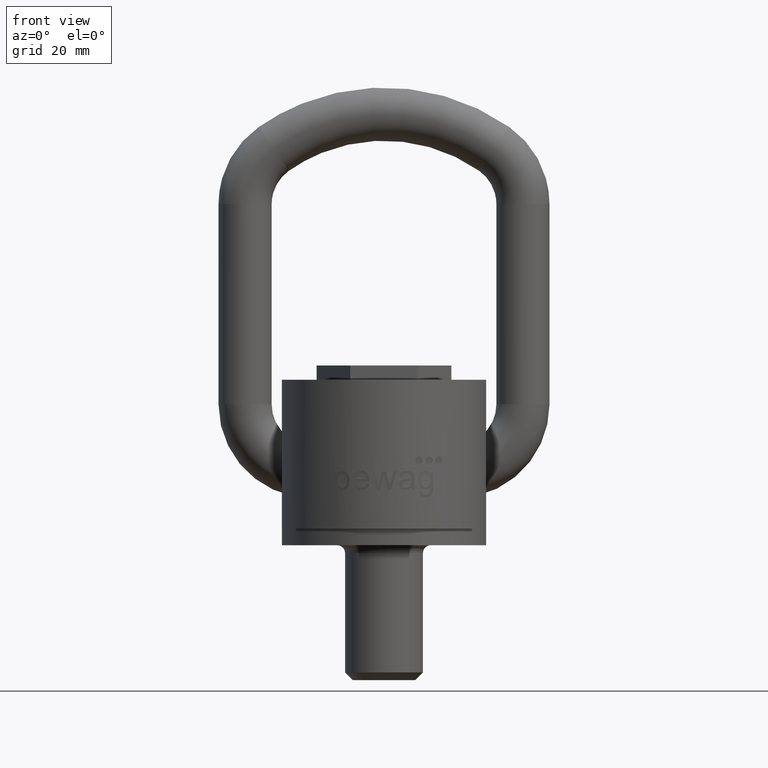
[diagram: clean part render]
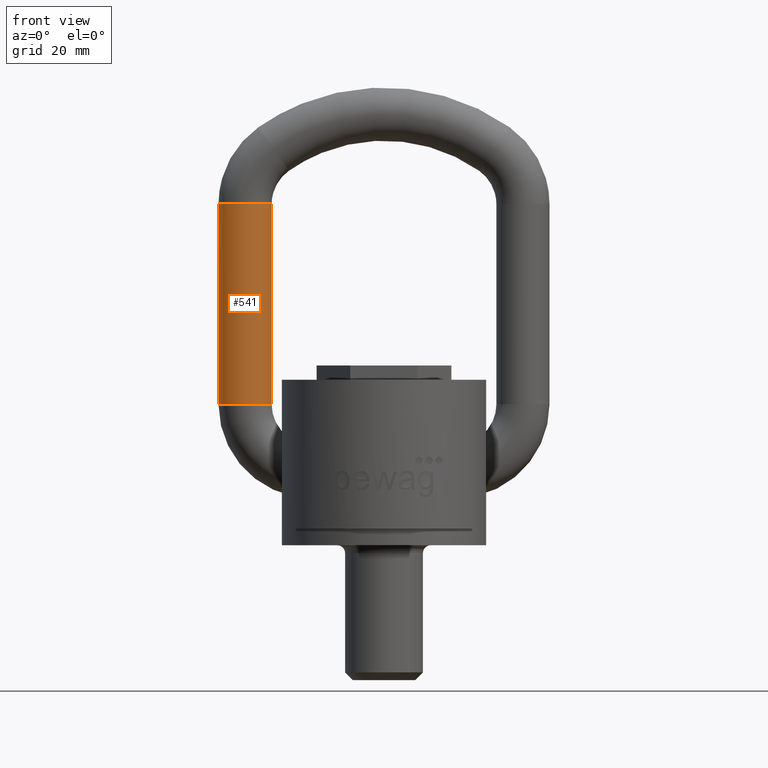
[diagram: same view with one face highlighted and labeled with its STEP entity id]
A machine part, front view. The second image highlights one B-rep face of the part: STEP entity #541.
In plain terms, the highlighted cylindrical surface (bore or boss wall) has radius 6.5 mm, axis along (0, 0, -1).
Its self-contained STEP definition (entity closure, byte-faithful):
#541=ADVANCED_FACE('',(#622,#623),#562,.T.);
#562=CYLINDRICAL_SURFACE('',#2601,6.5);
#622=FACE_BOUND('',#785,.T.);
#623=FACE_BOUND('',#786,.T.);
#785=EDGE_LOOP('',(#1757));
#786=EDGE_LOOP('',(#1758));
#1136=CIRCLE('',#2598,6.5);
#1137=CIRCLE('',#2600,6.5);
#1757=ORIENTED_EDGE('',*,*,#2290,.T.);
#1758=ORIENTED_EDGE('',*,*,#2289,.F.);
#1976=VERTEX_POINT('',#5284);
#1977=VERTEX_POINT('',#5287);
#2289=EDGE_CURVE('',#1976,#1976,#1136,.T.);
#2290=EDGE_CURVE('',#1977,#1977,#1137,.T.);
#2598=AXIS2_PLACEMENT_3D('',#5283,#3043,#3044);
#2600=AXIS2_PLACEMENT_3D('',#5286,#3047,#3048);
#2601=AXIS2_PLACEMENT_3D('',#5288,#3049,#3050);
#3043=DIRECTION('',(-8.32667268468867E-16,0.,-1.));
#3044=DIRECTION('',(-1.,0.,1.06752213906265E-15));
#3047=DIRECTION('',(-8.32667268468867E-16,0.,-1.));
#3048=DIRECTION('',(-1.,0.,0.));
#3049=DIRECTION('',(0.,0.,-1.));
#3050=DIRECTION('',(-1.,0.,0.));
#5283=CARTESIAN_POINT('',(-34.,20.,30.5));
#5284=CARTESIAN_POINT('',(-40.5,20.,30.5));
#5286=CARTESIAN_POINT('',(-34.,20.,79.4799919935936));
#5287=CARTESIAN_POINT('',(-40.5,20.,79.4799919935936));
#5288=CARTESIAN_POINT('',(-34.,20.,79.4799919935936));